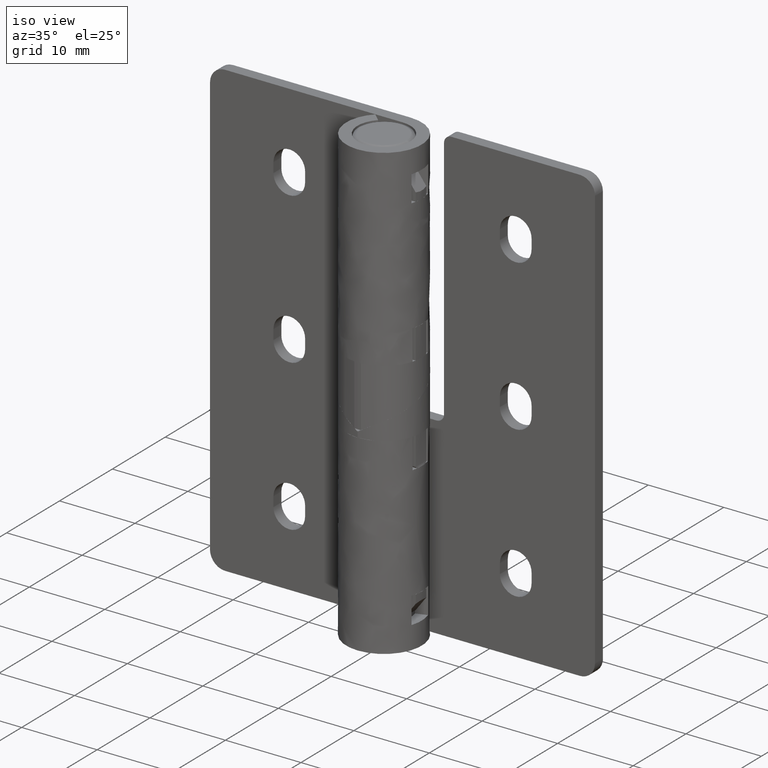
[diagram: clean part render]
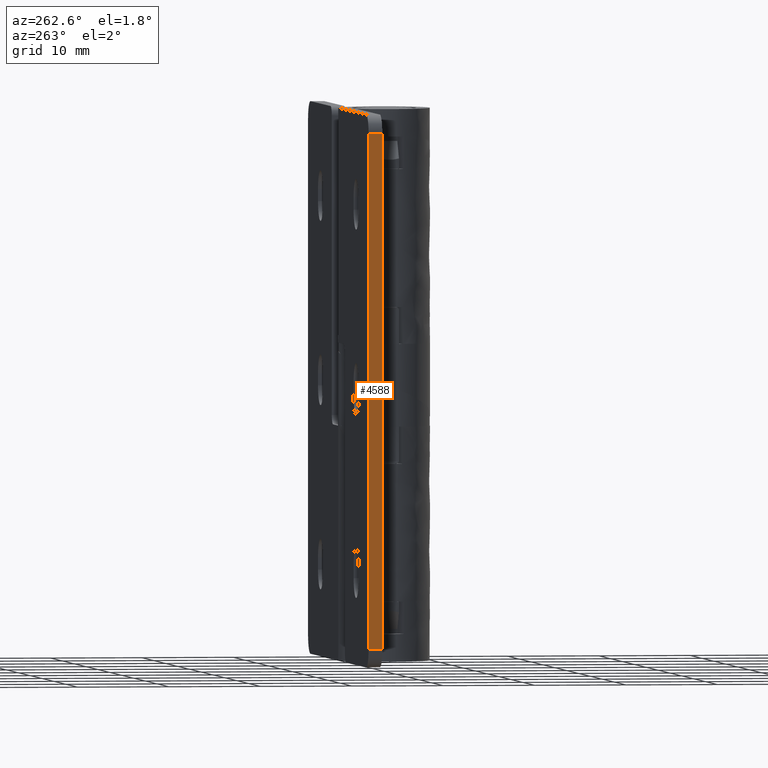
[diagram: tour spotlight — one face highlighted and labeled with its STEP entity id]
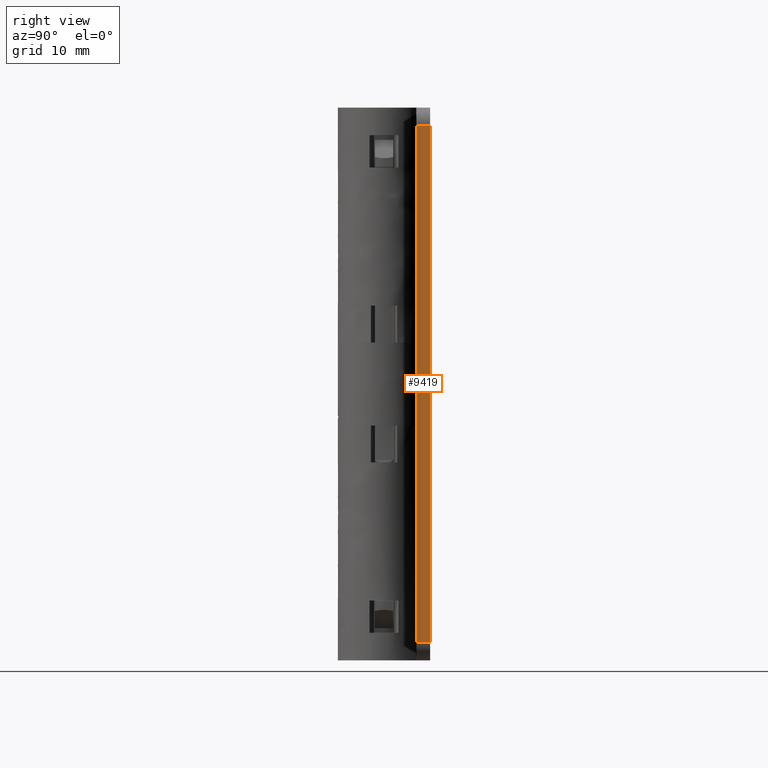
[diagram: tour spotlight — one face highlighted and labeled with its STEP entity id]
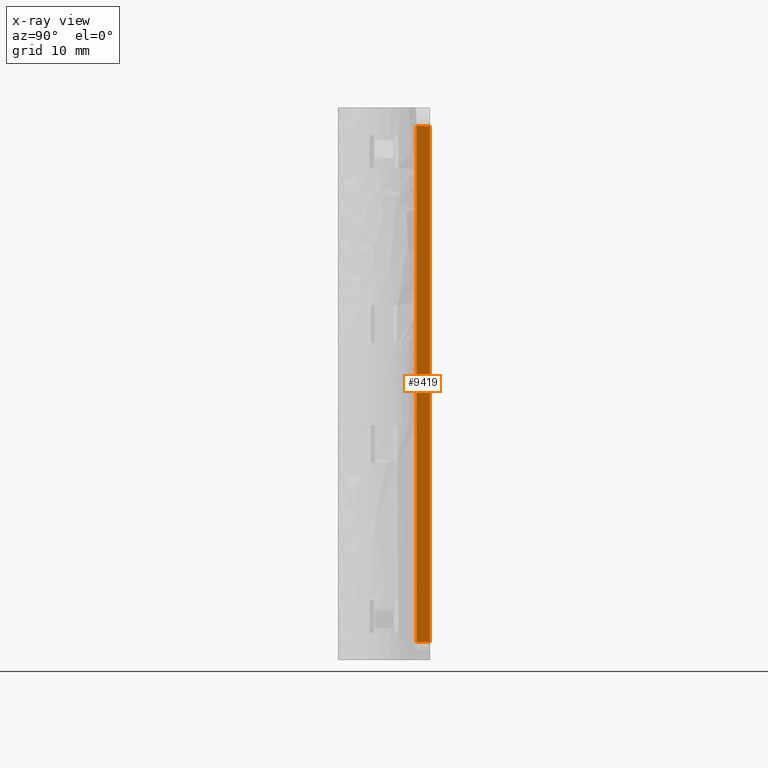
[diagram: x-ray of the same camera — body ghosted, this tour face saturated]
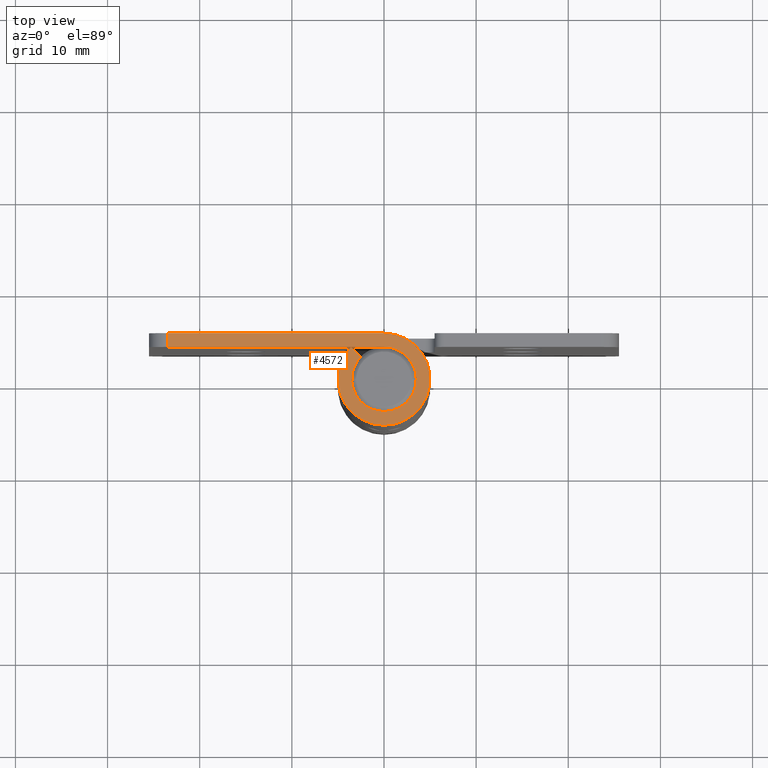
[diagram: tour spotlight — one face highlighted and labeled with its STEP entity id]
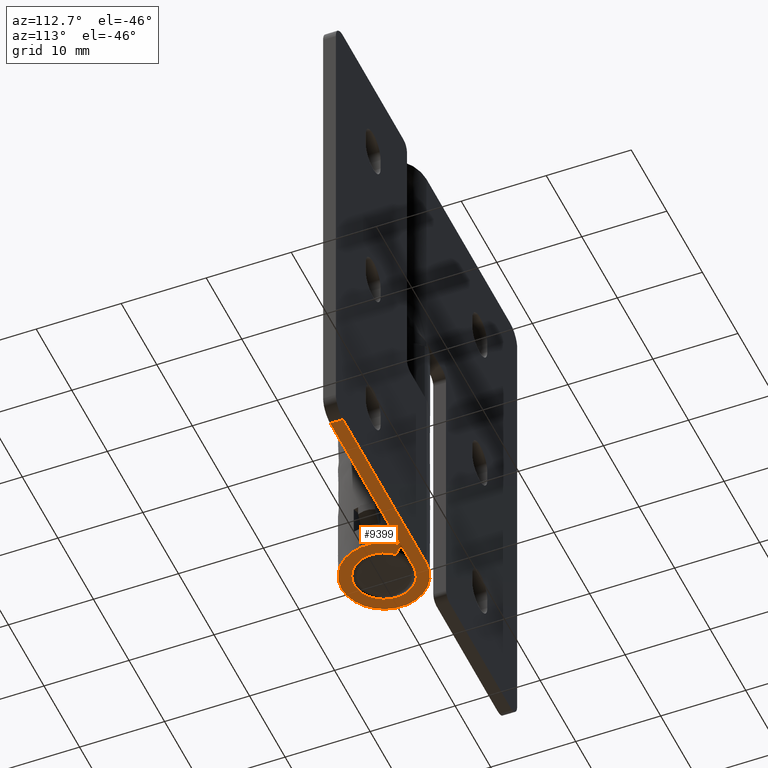
[diagram: tour spotlight — one face highlighted and labeled with its STEP entity id]
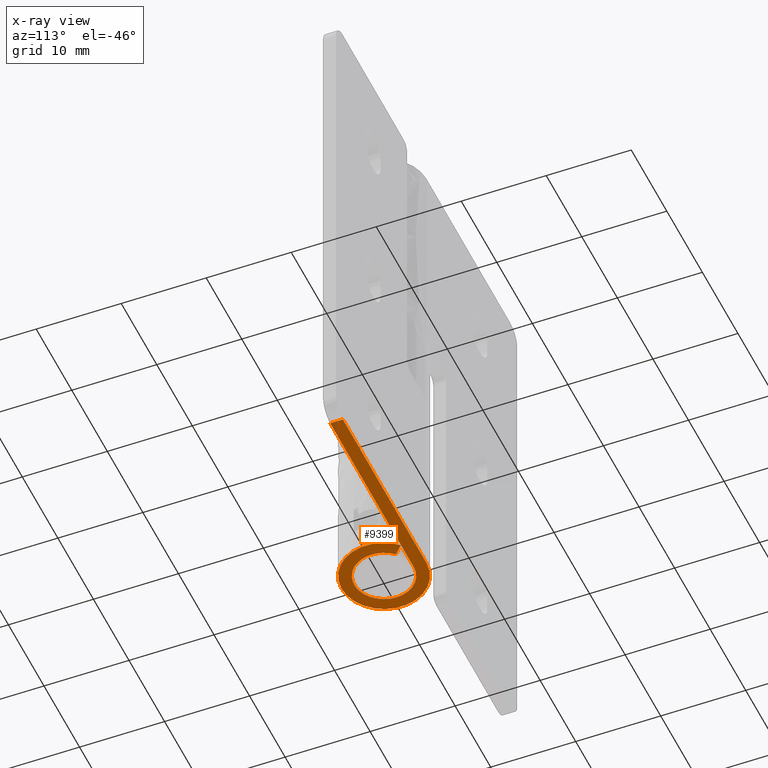
[diagram: x-ray of the same camera — body ghosted, this tour face saturated]
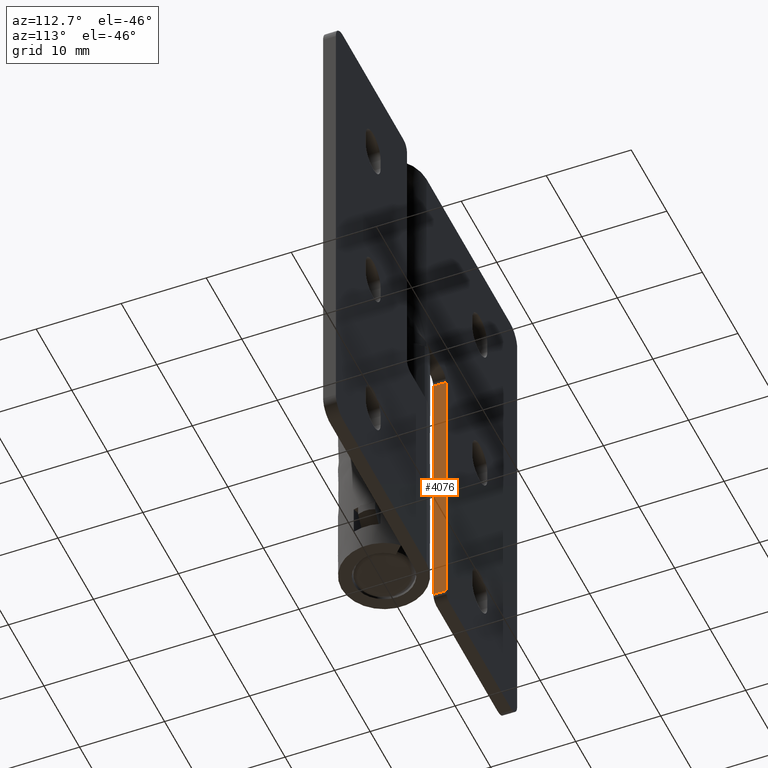
[diagram: tour spotlight — one face highlighted and labeled with its STEP entity id]
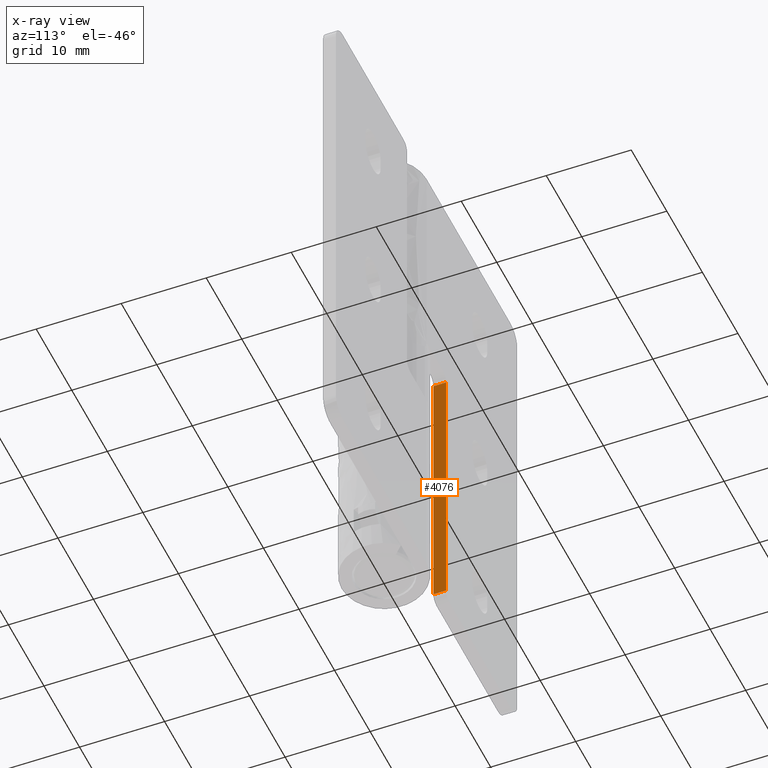
[diagram: x-ray of the same camera — body ghosted, this tour face saturated]
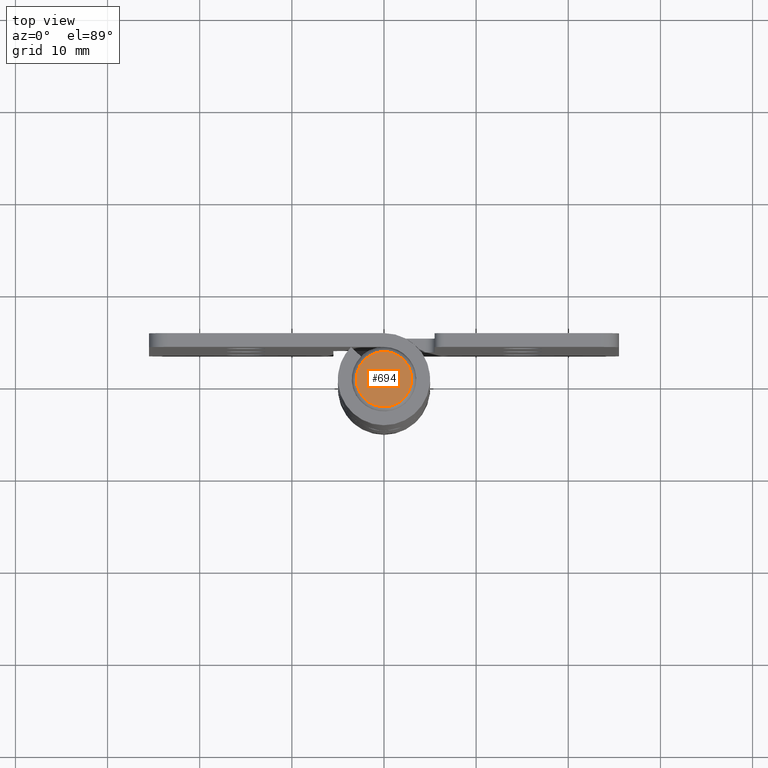
[diagram: tour spotlight — one face highlighted and labeled with its STEP entity id]
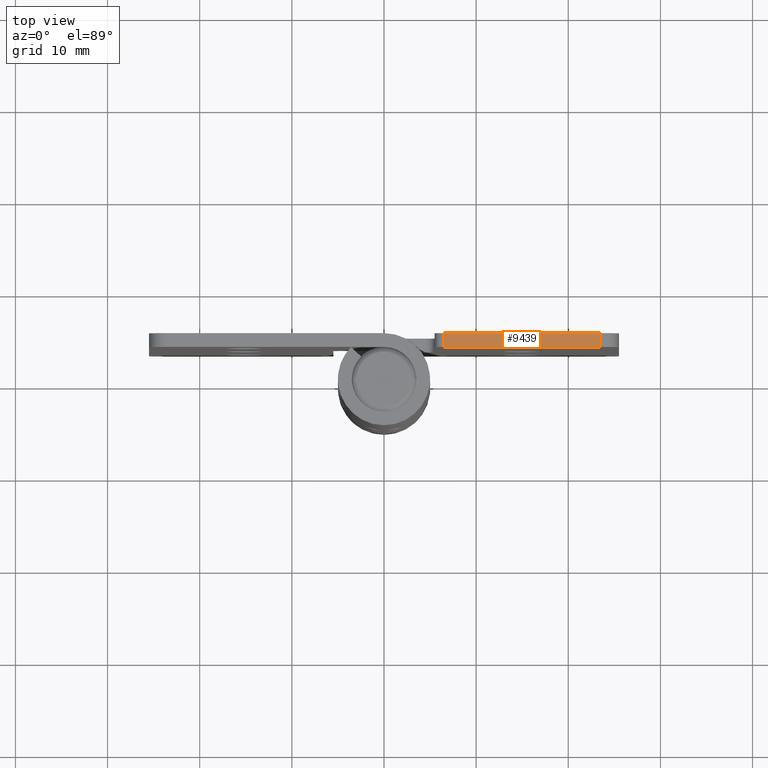
[diagram: tour spotlight — one face highlighted and labeled with its STEP entity id]
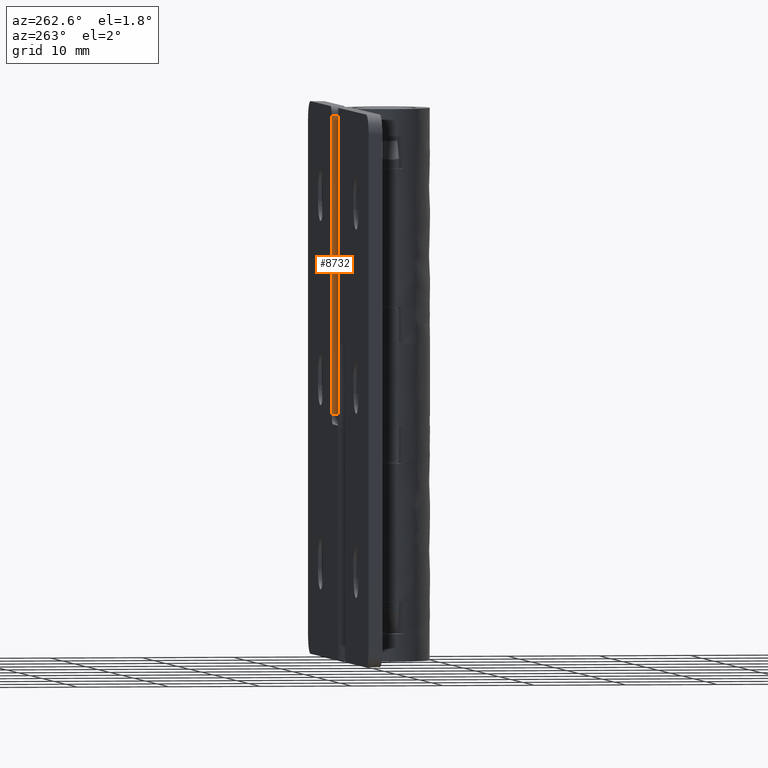
[diagram: tour spotlight — one face highlighted and labeled with its STEP entity id]
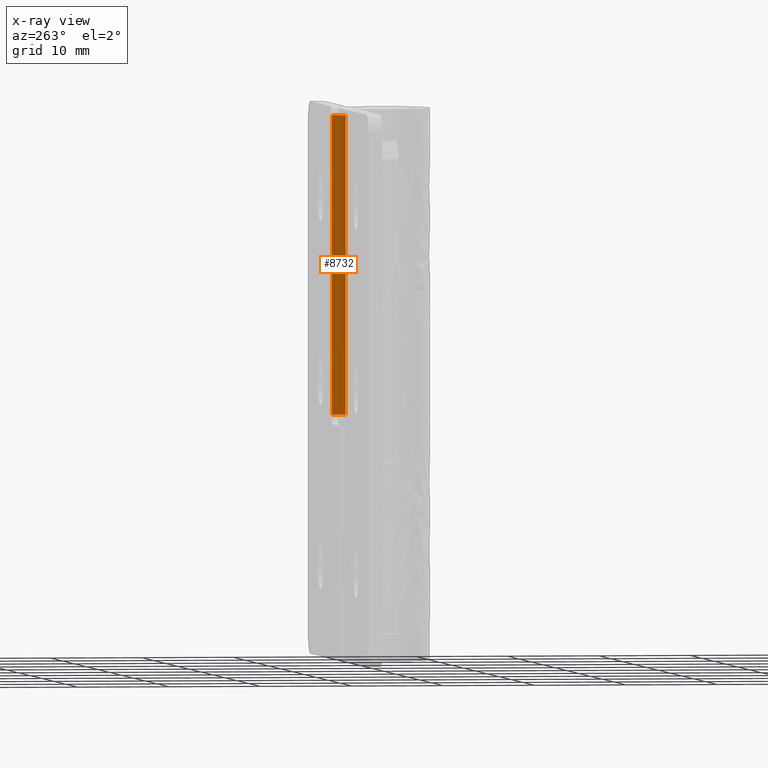
[diagram: x-ray of the same camera — body ghosted, this tour face saturated]
A machine part: a face-by-face anatomy tour. The part has 198 B-rep faces; the first image is the clean iso view, then the 8 largest visible faces are spotlighted one at a time (largest first), each with its STEP entity span.

Face 1 — auxiliary view, entity #4588. In plain terms, the highlighted face is a freeform B-spline surface patch.
Definition (entity closure, byte-faithful):
#1303=CARTESIAN_POINT('',(-25.500001251324601,3.500001000000000,58.000003882757902));
#1304=VERTEX_POINT('',#1303);
#1305=CARTESIAN_POINT('',(-25.500000993851600,3.500001000000000,2.000000882757790));
#1306=VERTEX_POINT('',#1305);
#1307=CARTESIAN_POINT('',(-25.500001251324601,3.500001000000000,58.000003882757902));
#1308=CARTESIAN_POINT('',(-25.500000993851600,3.500001000000000,2.000000882757790));
#1309=QUASI_UNIFORM_CURVE('',1,(#1307,#1308),.UNSPECIFIED.,.F.,.U.);
#1310=EDGE_CURVE('',#1304,#1306,#1309,.T.);
#3942=CARTESIAN_POINT('',(-25.500000993851600,5.000000999999999,2.000000882757790));
#3943=VERTEX_POINT('',#3942);
#3965=CARTESIAN_POINT('',(-25.500000993851600,3.500001000000000,2.000000882757790));
#3966=CARTESIAN_POINT('',(-25.500000993851600,5.000000999999999,2.000000882757790));
#3967=QUASI_UNIFORM_CURVE('',1,(#3965,#3966),.UNSPECIFIED.,.F.,.U.);
#3968=EDGE_CURVE('',#1306,#3943,#3967,.T.);
#3989=CARTESIAN_POINT('',(-25.500001251324601,5.000000999999999,58.000003882757902));
#3990=VERTEX_POINT('',#3989);
#4004=CARTESIAN_POINT('',(-25.500001251324601,5.000000999999999,58.000003882757902));
#4005=CARTESIAN_POINT('',(-25.500001251324601,3.500001000000000,58.000003882757902));
#4006=QUASI_UNIFORM_CURVE('',1,(#4004,#4005),.UNSPECIFIED.,.F.,.U.);
#4007=EDGE_CURVE('',#3990,#1304,#4006,.T.);
#4573=CARTESIAN_POINT('',(-25.500001264185411,5.074925997092708,60.797203924069038));
#4574=CARTESIAN_POINT('',(-25.500000980990809,5.074925997092708,-0.797200660590478));
#4575=CARTESIAN_POINT('',(-25.500001264185411,3.425075962674156,60.797203924069038));
#4576=CARTESIAN_POINT('',(-25.500000980990809,3.425075962674156,-0.797200660590478));
#4577=B_SPLINE_SURFACE_WITH_KNOTS('',1,1,((#4573,#4575),(#4574,#4576)),.UNSPECIFIED.,.F.,.F.,.U.,(2,2),(2,2),(0.0,61.594404584659522),(0.041708334948495,0.958291687403247),.UNSPECIFIED.);
#4578=CARTESIAN_POINT('',(-25.500001251324601,5.000000999999999,58.000003882757902));
#4579=CARTESIAN_POINT('',(-25.500000993851600,5.000000999999999,2.000000882757790));
#4580=QUASI_UNIFORM_CURVE('',1,(#4578,#4579),.UNSPECIFIED.,.F.,.U.);
#4581=EDGE_CURVE('',#3990,#3943,#4580,.T.);
#4582=ORIENTED_EDGE('',*,*,#4581,.T.);
#4583=ORIENTED_EDGE('',*,*,#3968,.F.);
#4584=ORIENTED_EDGE('',*,*,#1310,.F.);
#4585=ORIENTED_EDGE('',*,*,#4007,.F.);
#4586=EDGE_LOOP('',(#4582,#4583,#4584,#4585));
#4587=FACE_OUTER_BOUND('',#4586,.T.);
#4588=ADVANCED_FACE('',(#4587),#4577,.T.);

Face 2 — right view, entity #9419. An x-ray twin of the same camera follows (body ghosted, this face saturated) — the face is partly hidden behind the body. In plain terms, the highlighted face is a freeform B-spline surface patch.
Definition (entity closure, byte-faithful):
#8605=CARTESIAN_POINT('',(25.500000748675351,5.0,58.000003117242301));
#8606=VERTEX_POINT('',#8605);
#8629=CARTESIAN_POINT('',(25.500000748675351,3.500000000000000,58.000003117242301));
#8630=VERTEX_POINT('',#8629);
#8644=CARTESIAN_POINT('',(25.500000748675351,3.500000000000000,58.000003117242301));
#8645=CARTESIAN_POINT('',(25.500000748675351,5.0,58.000003117242301));
#8646=QUASI_UNIFORM_CURVE('',1,(#8644,#8645),.UNSPECIFIED.,.F.,.U.);
#8647=EDGE_CURVE('',#8630,#8606,#8646,.T.);
#8668=CARTESIAN_POINT('',(25.500001006148398,5.0,2.000000117242185));
#8669=VERTEX_POINT('',#8668);
#8683=CARTESIAN_POINT('',(25.500001006148398,3.500000000000000,2.000000117242185));
#8684=VERTEX_POINT('',#8683);
#8685=CARTESIAN_POINT('',(25.500001006148398,5.0,2.000000117242185));
#8686=CARTESIAN_POINT('',(25.500001006148398,3.500000000000000,2.000000117242185));
#8687=QUASI_UNIFORM_CURVE('',1,(#8685,#8686),.UNSPECIFIED.,.F.,.U.);
#8688=EDGE_CURVE('',#8669,#8684,#8687,.T.);
#9400=CARTESIAN_POINT('',(25.500000735814591,5.074924997092710,60.797203158553437));
#9401=CARTESIAN_POINT('',(25.500001019009190,5.074924997092710,-0.797201426106075));
#9402=CARTESIAN_POINT('',(25.500000735814591,3.425074962674156,60.797203158553437));
#9403=CARTESIAN_POINT('',(25.500001019009190,3.425074962674156,-0.797201426106075));
#9404=B_SPLINE_SURFACE_WITH_KNOTS('',1,1,((#9400,#9402),(#9401,#9403)),.UNSPECIFIED.,.F.,.F.,.U.,(2,2),(2,2),(0.0,61.594404584659522),(0.041708334948495,0.958291687403247),.UNSPECIFIED.);
#9405=CARTESIAN_POINT('',(25.500000748675351,5.0,58.000003117242301));
#9406=CARTESIAN_POINT('',(25.500001006148398,5.0,2.000000117242185));
#9407=QUASI_UNIFORM_CURVE('',1,(#9405,#9406),.UNSPECIFIED.,.F.,.U.);
#9408=EDGE_CURVE('',#8606,#8669,#9407,.T.);
#9409=ORIENTED_EDGE('',*,*,#9408,.F.);
#9410=ORIENTED_EDGE('',*,*,#8647,.F.);
#9411=CARTESIAN_POINT('',(25.500000748675351,3.500000000000000,58.000003117242301));
#9412=CARTESIAN_POINT('',(25.500001006148398,3.500000000000000,2.000000117242185));
#9413=QUASI_UNIFORM_CURVE('',1,(#9411,#9412),.UNSPECIFIED.,.F.,.U.);
#9414=EDGE_CURVE('',#8630,#8684,#9413,.T.);
#9415=ORIENTED_EDGE('',*,*,#9414,.T.);
#9416=ORIENTED_EDGE('',*,*,#8688,.F.);
#9417=EDGE_LOOP('',(#9409,#9410,#9415,#9416));
#9418=FACE_OUTER_BOUND('',#9417,.T.);
#9419=ADVANCED_FACE('',(#9418),#9404,.F.);

Face 3 — top view, entity #4572. In plain terms, the highlighted face is a freeform B-spline surface patch.
Definition (entity closure, byte-faithful):
#1389=CARTESIAN_POINT('',(-0.000000260520087,3.500001000000000,60.000004000000096));
#1390=VERTEX_POINT('',#1389);
#1396=CARTESIAN_POINT('',(-23.500001260520101,3.500001000000000,60.000003891953298));
#1397=VERTEX_POINT('',#1396);
#1398=CARTESIAN_POINT('',(-23.500001260520101,3.500001000000000,60.000003891953298));
#1399=CARTESIAN_POINT('',(-0.000000260520087,3.500001000000000,60.000004000000096));
#1400=QUASI_UNIFORM_CURVE('',1,(#1398,#1399),.UNSPECIFIED.,.F.,.U.);
#1401=EDGE_CURVE('',#1397,#1390,#1400,.T.);
#1627=CARTESIAN_POINT('',(-2.499500958105065,2.450000665872005,60.000003988507999));
#1628=VERTEX_POINT('',#1627);
#1634=CARTESIAN_POINT('',(-0.000000260520087,3.500001000000000,60.000004000000096));
#1635=CARTESIAN_POINT('',(0.262603403531770,3.500056024050533,60.000004001207522));
#1636=CARTESIAN_POINT('',(0.687736451178236,3.451911994518464,60.000004003162140));
#1637=CARTESIAN_POINT('',(1.323454370324029,3.258925026738228,60.000004006085042));
#1638=CARTESIAN_POINT('',(1.839939676912816,2.999006588386965,60.000004008459577));
#1639=CARTESIAN_POINT('',(2.311578031015808,2.645542218672373,60.000004010627947));
#1640=CARTESIAN_POINT('',(2.716306950623997,2.234510069856548,60.000004012489320));
#1641=CARTESIAN_POINT('',(3.031219739989302,1.780207079639389,60.000004013936547));
#1642=CARTESIAN_POINT('',(3.290309713532388,1.237415465635423,60.000004015128347));
#1643=CARTESIAN_POINT('',(3.480869330837676,0.586323530553894,60.000004016003317));
#1644=CARTESIAN_POINT('',(3.520615139509439,-0.080716446145826,60.000004016187312));
#1645=CARTESIAN_POINT('',(3.437351295175455,-0.726769309129725,60.000004015804187));
#1646=CARTESIAN_POINT('',(3.254732296719709,-1.366753385458846,60.000004014964652));
#1647=CARTESIAN_POINT('',(2.901845525933892,-2.007837107676079,60.000004013340693));
#1648=CARTESIAN_POINT('',(2.403557601630291,-2.572494563292307,60.000004011055047));
#1649=CARTESIAN_POINT('',(1.956818675253504,-2.919432753271955,60.000004008985172));
#1650=CARTESIAN_POINT('',(1.452639801791119,-3.198045389135360,60.000004006702063));
#1651=CARTESIAN_POINT('',(0.888619459119563,-3.410520040654796,60.000004004067897));
#1652=CARTESIAN_POINT('',(0.242261850084998,-3.512520944957580,60.000004001120992));
#1653=CARTESIAN_POINT('',(-0.359372900334955,-3.493804298561488,60.000003998346578));
#1654=CARTESIAN_POINT('',(-0.865406493476308,-3.403955640319464,60.000003996021341));
#1655=CARTESIAN_POINT('',(-1.389081110978069,-3.230166441957564,60.000003993613433));
#1656=CARTESIAN_POINT('',(-2.021821335211825,-2.895575623749311,60.000003990703703));
#1657=CARTESIAN_POINT('',(-2.640471421154628,-2.356286390223928,60.000003987861213));
#1658=CARTESIAN_POINT('',(-3.086039138691199,-1.699942392606459,60.000003985811041));
#1659=CARTESIAN_POINT('',(-3.382844634205087,-0.994591224231533,60.000003984446948));
#1660=CARTESIAN_POINT('',(-3.529973542610455,-0.226820174559734,60.000003983769517));
#1661=CARTESIAN_POINT('',(-3.484960043774403,0.489969303166502,60.000003983978367));
#1662=CARTESIAN_POINT('',(-3.339353118417448,1.086061007901758,60.000003984647023));
#1663=CARTESIAN_POINT('',(-3.084159247829351,1.727464495421988,60.000003985816157));
#1664=CARTESIAN_POINT('',(-2.753487582746710,2.191132568046640,60.000003987344762));
#1665=CARTESIAN_POINT('',(-2.499500958105065,2.450000665872005,60.000003988507999));
#1666=B_SPLINE_CURVE_WITH_KNOTS('',3,(#1634,#1635,#1636,#1637,#1638,#1639,#1640,#1641,#1642,#1643,#1644,#1645,#1646,#1647,#1648,#1649,#1650,#1651,#1652,#1653,#1654,#1655,#1656,#1657,#1658,#1659,#1660,#1661,#1662,#1663,#1664,#1665),.UNSPECIFIED.,.F.,.U.,(4,1,1,1,1,1,1,1,1,1,1,1,1,1,1,1,1,1,1,1,1,1,1,1,1,1,1,1,1,4),(0.000000327577325,0.787800066866780,1.275484508409573,1.988254620298434,2.513464387966060,3.038675853268526,3.713932226381193,4.164124515391452,4.839318995090645,5.739677307539457,6.152350298233017,6.790091999135930,7.727967073818595,8.328206780892531,9.040973538880291,9.416139310987440,10.053841249027229,10.841627127496650,11.366844170701620,11.854536222928610,12.379745289622599,13.017484700705911,13.992887735971630,14.818138201435680,15.380877834739870,16.281229068174010,17.144061607274161,17.519209306170840,18.119437180521441,19.207350046540320),.UNSPECIFIED.);
#1667=EDGE_CURVE('',#1390,#1628,#1666,.T.);
#3987=CARTESIAN_POINT('',(-23.500001260520101,5.000000999999999,60.000003891953298));
#3988=VERTEX_POINT('',#3987);
#4010=CARTESIAN_POINT('',(-23.500001260520101,3.500001000000000,60.000003891953298));
#4011=CARTESIAN_POINT('',(-23.500001260520101,5.000000999999999,60.000003891953298));
#4012=QUASI_UNIFORM_CURVE('',1,(#4010,#4011),.UNSPECIFIED.,.F.,.U.);
#4013=EDGE_CURVE('',#1397,#3988,#4012,.T.);
#4512=CARTESIAN_POINT('',(6.423491460664998,-5.499499955132420,60.000004029533521));
#4513=CARTESIAN_POINT('',(-24.923573057686969,-5.499499955132420,60.000003885408077));
#4514=CARTESIAN_POINT('',(6.423491460664998,5.499501294218037,60.000004029533521));
#4515=CARTESIAN_POINT('',(-24.923573057686969,5.499501294218037,60.000003885408077));
#4516=B_SPLINE_SURFACE_WITH_KNOTS('',1,1,((#4512,#4514),(#4513,#4515)),.UNSPECIFIED.,.F.,.F.,.U.,(2,2),(2,2),(0.0,31.347064518351971),(0.0,10.999001249350460),.UNSPECIFIED.);
#4517=ORIENTED_EDGE('',*,*,#1401,.T.);
#4518=ORIENTED_EDGE('',*,*,#1667,.T.);
#4519=CARTESIAN_POINT('',(-3.584604260520100,3.485774000000000,60.000003983519001));
#4520=VERTEX_POINT('',#4519);
#4521=CARTESIAN_POINT('',(-2.499500958105065,2.450000665872005,60.000003988507999));
#4522=CARTESIAN_POINT('',(-3.584604260520100,3.485774000000000,60.000003983519001));
#4523=QUASI_UNIFORM_CURVE('',1,(#4521,#4522),.UNSPECIFIED.,.F.,.U.);
#4524=EDGE_CURVE('',#1628,#4520,#4523,.T.);
#4525=ORIENTED_EDGE('',*,*,#4524,.T.);
#4526=CARTESIAN_POINT('',(-0.000000260520086,5.0,60.000004000000096));
#4527=VERTEX_POINT('',#4526);
#4528=CARTESIAN_POINT('',(-0.000000260520086,5.0,60.000004000000096));
#4529=CARTESIAN_POINT('',(0.339168441609722,5.000037761302760,60.000004001559567));
#4530=CARTESIAN_POINT('',(1.017492387198805,4.930737607081747,60.000004004678203));
#4531=CARTESIAN_POINT('',(1.907413976512160,4.650313964338536,60.000004008769942));
#4532=CARTESIAN_POINT('',(2.716376997519657,4.227119634181282,60.000004012489271));
#4533=CARTESIAN_POINT('',(3.385690773434950,3.714772841895097,60.000004015566446));
#4534=CARTESIAN_POINT('',(4.002040958868134,3.040728985050709,60.000004018400823));
#4535=CARTESIAN_POINT('',(4.443037078345874,2.343526992510551,60.000004020427284));
#4536=CARTESIAN_POINT('',(4.810644640858055,1.469262720507996,60.000004022118482));
#4537=CARTESIAN_POINT('',(5.017297474343224,0.502484676933279,60.000004023068861));
#4538=CARTESIAN_POINT('',(5.002017048542065,-0.556658392659577,60.000004022997942));
#4539=CARTESIAN_POINT('',(4.794074635849126,-1.520367672927630,60.000004022043122));
#4540=CARTESIAN_POINT('',(4.437929770182652,-2.362817004477889,60.000004020402777));
#4541=CARTESIAN_POINT('',(3.925779103632349,-3.141103947190555,60.000004018052692));
#4542=CARTESIAN_POINT('',(3.354967936428937,-3.736712306150280,60.000004015423968));
#4543=CARTESIAN_POINT('',(2.669388530807791,-4.253629755018669,60.000004012273472));
#4544=CARTESIAN_POINT('',(1.955585245623873,-4.630121480786790,60.000004008991290));
#4545=CARTESIAN_POINT('',(1.136598042944897,-4.891241049354735,60.000004005225939));
#4546=CARTESIAN_POINT('',(0.410363552102831,-4.999493930274016,60.000004001886857));
#4547=CARTESIAN_POINT('',(-0.322777565479001,-5.005906077639171,60.000003998516050));
#4548=CARTESIAN_POINT('',(-1.157345977826975,-4.896458462600877,60.000003994678963));
#4549=CARTESIAN_POINT('',(-2.094197290269679,-4.582595400829328,60.000003990371553));
#4550=CARTESIAN_POINT('',(-2.941926894346900,-4.077279421996061,60.000003986473878));
#4551=CARTESIAN_POINT('',(-3.655765525215737,-3.451723998052960,60.000003983191903));
#4552=CARTESIAN_POINT('',(-4.234586174163993,-2.719910370714390,60.000003980530643));
#4553=CARTESIAN_POINT('',(-4.649592047997546,-1.904858799750590,60.000003978622473));
#4554=CARTESIAN_POINT('',(-4.924377026919876,-1.015460965718463,60.000003977359157));
#4555=CARTESIAN_POINT('',(-5.044490098938108,0.000836110417829,60.000003976807093));
#4556=CARTESIAN_POINT('',(-4.927116178570706,1.037439030363907,60.000003977345663));
#4557=CARTESIAN_POINT('',(-4.609614025868849,2.007633084844685,60.000003978808699));
#4558=CARTESIAN_POINT('',(-4.180820225392517,2.795695166798939,60.000003980770217));
#4559=CARTESIAN_POINT('',(-3.783727789819785,3.281030369865072,60.000003982615631));
#4560=CARTESIAN_POINT('',(-3.584604260520100,3.485774000000000,60.000003983519001));
#4561=B_SPLINE_CURVE_WITH_KNOTS('',3,(#4528,#4529,#4530,#4531,#4532,#4533,#4534,#4535,#4536,#4537,#4538,#4539,#4540,#4541,#4542,#4543,#4544,#4545,#4546,#4547,#4548,#4549,#4550,#4551,#4552,#4553,#4554,#4555,#4556,#4557,#4558,#4559,#4560),.UNSPECIFIED.,.F.,.U.,(4,1,1,1,1,1,1,1,1,1,1,1,1,1,1,1,1,1,1,1,1,1,1,1,1,1,1,1,1,1,4),(0.000000806108631,1.017507007301418,2.035011776978312,2.784760293527519,3.748720145811284,4.552016813116811,5.515996476287249,6.212192882253575,7.390313575551243,8.461387733536483,9.371780232920724,10.335748361155829,11.192600809698140,12.156576000113629,12.799220820241359,13.763120876526839,14.566410751779630,15.369734111032070,15.958815923022410,16.762116159817172,17.886736554130039,18.904243783511539,19.707567142131420,20.725008679735510,21.688971356311530,22.438738666576288,23.509799025498939,24.741531349901940,25.544828818991270,26.562361937887381,27.419181143920319),.UNSPECIFIED.);
#4562=EDGE_CURVE('',#4527,#4520,#4561,.T.);
#4563=ORIENTED_EDGE('',*,*,#4562,.F.);
#4564=CARTESIAN_POINT('',(-0.000000260520086,5.0,60.000004000000096));
#4565=CARTESIAN_POINT('',(-23.500001260520101,5.000000999999999,60.000003891953298));
#4566=QUASI_UNIFORM_CURVE('',1,(#4564,#4565),.UNSPECIFIED.,.F.,.U.);
#4567=EDGE_CURVE('',#4527,#3988,#4566,.T.);
#4568=ORIENTED_EDGE('',*,*,#4567,.T.);
#4569=ORIENTED_EDGE('',*,*,#4013,.F.);
#4570=EDGE_LOOP('',(#4517,#4518,#4525,#4563,#4568,#4569));
#4571=FACE_OUTER_BOUND('',#4570,.T.);
#4572=ADVANCED_FACE('',(#4571),#4516,.F.);

Face 4 — auxiliary view, entity #9399. An x-ray twin of the same camera follows (body ghosted, this face saturated) — the face is partly hidden behind the body. In plain terms, the highlighted face is a freeform B-spline surface patch.
Definition (entity closure, byte-faithful):
#6081=CARTESIAN_POINT('',(2.499499989507380,2.449999975338090,0.000000011492033));
#6082=VERTEX_POINT('',#6081);
#6088=CARTESIAN_POINT('',(0.000000015343861,3.500000000000000,7.054697E-017));
#6089=VERTEX_POINT('',#6088);
#6090=CARTESIAN_POINT('',(0.000000015343861,3.500000000000000,7.054697E-017));
#6091=CARTESIAN_POINT('',(-0.325136547505192,3.500122872184311,-1.494891E-009));
#6092=CARTESIAN_POINT('',(-0.837753370501138,3.428027287619650,-3.851766E-009));
#6093=CARTESIAN_POINT('',(-1.460235469821714,3.194343176130837,-6.713772E-009));
#6094=CARTESIAN_POINT('',(-1.943088969219250,2.928194625549117,-8.933803E-009));
#6095=CARTESIAN_POINT('',(-2.469244712111508,2.520653435178548,-0.000000011352927));
#6096=CARTESIAN_POINT('',(-2.887527336777902,2.015783212998218,-0.000000013276078));
#6097=CARTESIAN_POINT('',(-3.244637973285598,1.368708214578169,-0.000000014917978));
#6098=CARTESIAN_POINT('',(-3.444956356282666,0.757716298682903,-0.000000015838988));
#6099=CARTESIAN_POINT('',(-3.510274700269011,0.120958201801812,-0.000000016139304));
#6100=CARTESIAN_POINT('',(-3.487507596809586,-0.417205897040341,-0.000000016034627));
#6101=CARTESIAN_POINT('',(-3.382524452782218,-0.972153473816183,-0.000000015551943));
#6102=CARTESIAN_POINT('',(-3.164886101037122,-1.534541159649502,-0.000000014551300));
#6103=CARTESIAN_POINT('',(-2.829233522662338,-2.093610448984865,-0.000000013008059));
#6104=CARTESIAN_POINT('',(-2.421527632705837,-2.555724935724395,-0.000000011133536));
#6105=CARTESIAN_POINT('',(-1.896382116067354,-2.963528459862869,-8.719058E-009));
#6106=CARTESIAN_POINT('',(-1.418094879935662,-3.214619594366683,-6.520021E-009));
#6107=CARTESIAN_POINT('',(-0.885616271992517,-3.399030992795809,-4.071827E-009));
#6108=CARTESIAN_POINT('',(-0.355258107157534,-3.500320971625789,-1.633382E-009));
#6109=CARTESIAN_POINT('',(0.297350583284897,-3.508055983208390,1.367138E-009));
#6110=CARTESIAN_POINT('',(0.866655943674460,-3.406974309211410,3.984652E-009));
#6111=CARTESIAN_POINT('',(1.457868168619192,-3.200157516951024,6.702888E-009));
#6112=CARTESIAN_POINT('',(1.975858945962017,-2.915410639327261,9.084471E-009));
#6113=CARTESIAN_POINT('',(2.447960189395363,-2.521271915398955,0.000000011255066));
#6114=CARTESIAN_POINT('',(2.877724248626013,-2.031175809723151,0.000000013231007));
#6115=CARTESIAN_POINT('',(3.200808138279714,-1.475745440871973,0.000000014716460));
#6116=CARTESIAN_POINT('',(3.439903626682025,-0.762003079115319,0.000000015815757));
#6117=CARTESIAN_POINT('',(3.534095484983452,-0.012387970288814,0.000000016248826));
#6118=CARTESIAN_POINT('',(3.444950387541473,0.751039681301946,0.000000015838961));
#6119=CARTESIAN_POINT('',(3.232332298486901,1.381350341992872,0.000000014861399));
#6120=CARTESIAN_POINT('',(2.939473764219489,1.935751666389839,0.000000013514914));
#6121=CARTESIAN_POINT('',(2.674590280625177,2.271426584647654,0.000000012297051));
#6122=CARTESIAN_POINT('',(2.499499989507380,2.449999975338090,0.000000011492033));
#6123=B_SPLINE_CURVE_WITH_KNOTS('',3,(#6090,#6091,#6092,#6093,#6094,#6095,#6096,#6097,#6098,#6099,#6100,#6101,#6102,#6103,#6104,#6105,#6106,#6107,#6108,#6109,#6110,#6111,#6112,#6113,#6114,#6115,#6116,#6117,#6118,#6119,#6120,#6121,#6122),.UNSPECIFIED.,.F.,.U.,(4,1,1,1,1,1,1,1,1,1,1,1,1,1,1,1,1,1,1,1,1,1,1,1,1,1,1,1,1,1,4),(0.000000327577915,0.975368019859111,1.538077743842685,1.988254053598556,2.626007647686656,3.526366489244177,3.939030067092604,4.839317615768609,5.439562660698584,5.852228093203141,6.452465336446098,7.127726398441988,7.652936776374327,8.403220001874336,8.965959665401320,9.641154611021067,10.016298268711679,10.654051701360190,11.254291712616210,11.967076229897319,12.379741761096710,13.130029991466021,13.730256117954680,14.217972112480300,15.080761609344620,15.643459746403620,16.468796714012289,17.331629007546582,17.931865700862069,18.457080328030411,19.207344571982912),.UNSPECIFIED.);
#6124=EDGE_CURVE('',#6089,#6082,#6123,.T.);
#8666=CARTESIAN_POINT('',(23.500001015343852,5.0,0.000000108046720));
#8667=VERTEX_POINT('',#8666);
#8690=CARTESIAN_POINT('',(23.500001015343852,3.500000000000000,0.000000108046720));
#8691=VERTEX_POINT('',#8690);
#8705=CARTESIAN_POINT('',(23.500001015343852,3.500000000000000,0.000000108046720));
#8706=CARTESIAN_POINT('',(23.500001015343852,5.0,0.000000108046720));
#8707=QUASI_UNIFORM_CURVE('',1,(#8705,#8706),.UNSPECIFIED.,.F.,.U.);
#8708=EDGE_CURVE('',#8691,#8667,#8707,.T.);
#9334=CARTESIAN_POINT('',(24.923571972475941,5.499499971462583,0.000000114591919));
#9335=CARTESIAN_POINT('',(-6.423490872891398,5.499499971462583,-0.000000029533493));
#9336=CARTESIAN_POINT('',(24.923571972475941,-5.499500053810072,0.000000114591919));
#9337=CARTESIAN_POINT('',(-6.423490872891398,-5.499500053810072,-0.000000029533493));
#9338=B_SPLINE_SURFACE_WITH_KNOTS('',1,1,((#9334,#9336),(#9335,#9337)),.UNSPECIFIED.,.F.,.F.,.U.,(2,2),(2,2),(0.0,31.347062845367340),(0.0,10.999000025272650),.UNSPECIFIED.);
#9339=CARTESIAN_POINT('',(23.500001015343852,3.500000000000000,0.000000108046720));
#9340=CARTESIAN_POINT('',(0.000000015343861,3.500000000000000,7.054697E-017));
#9341=QUASI_UNIFORM_CURVE('',1,(#9339,#9340),.UNSPECIFIED.,.F.,.U.);
#9342=EDGE_CURVE('',#8691,#6089,#9341,.T.);
#9343=ORIENTED_EDGE('',*,*,#9342,.T.);
#9344=ORIENTED_EDGE('',*,*,#6124,.T.);
#9345=CARTESIAN_POINT('',(3.584604070007145,3.485773052178175,0.000000016481051));
#9346=VERTEX_POINT('',#9345);
#9347=CARTESIAN_POINT('',(2.499499989507380,2.449999975338090,0.000000011492033));
#9348=CARTESIAN_POINT('',(3.584604070007145,3.485773052178175,0.000000016481051));
#9349=QUASI_UNIFORM_CURVE('',1,(#9347,#9348),.UNSPECIFIED.,.F.,.U.);
#9350=EDGE_CURVE('',#6082,#9346,#9349,.T.);
#9351=ORIENTED_EDGE('',*,*,#9350,.T.);
#9352=CARTESIAN_POINT('',(0.000000015343861,5.0,7.054697E-017));
#9353=VERTEX_POINT('',#9352);
#9354=CARTESIAN_POINT('',(0.000000015343861,5.0,7.054697E-017));
#9355=CARTESIAN_POINT('',(-0.410583753694414,5.000105933052311,-1.887754E-009));
#9356=CARTESIAN_POINT('',(-1.017452182501639,4.924799702435983,-4.677973E-009));
#9357=CARTESIAN_POINT('',(-1.904339605098021,4.645339767958876,-8.755644E-009));
#9358=CARTESIAN_POINT('',(-2.659424871605727,4.270748787268917,-0.000000012227324));
#9359=CARTESIAN_POINT('',(-3.414179142263505,3.692964550625354,-0.000000015697483));
#9360=CARTESIAN_POINT('',(-4.071664932337088,2.958324294497658,-0.000000018720426));
#9361=CARTESIAN_POINT('',(-4.536023015904382,2.169173267175692,-0.000000020855421));
#9362=CARTESIAN_POINT('',(-4.848857651638423,1.311483954795915,-0.000000022293751));
#9363=CARTESIAN_POINT('',(-4.996263000852723,0.518465840636072,-0.000000022971481));
#9364=CARTESIAN_POINT('',(-5.012836612564175,-0.412247537249554,-0.000000023047682));
#9365=CARTESIAN_POINT('',(-4.858157638485203,-1.315258966112484,-0.000000022336510));
#9366=CARTESIAN_POINT('',(-4.561729325967713,-2.084287381403803,-0.000000020973612));
#9367=CARTESIAN_POINT('',(-4.217942964224637,-2.711066550267077,-0.000000019392974));
#9368=CARTESIAN_POINT('',(-3.859104279586532,-3.202990934535510,-0.000000017743129));
#9369=CARTESIAN_POINT('',(-3.351973015649526,-3.732173888008538,-0.000000015411476));
#9370=CARTESIAN_POINT('',(-2.676577107142067,-4.264571068402892,-0.000000012306186));
#9371=CARTESIAN_POINT('',(-1.808546765733190,-4.698909993207194,-8.315214E-009));
#9372=CARTESIAN_POINT('',(-0.908286222593279,-4.938751188382739,-4.176057E-009));
#9373=CARTESIAN_POINT('',(-0.053304953091141,-5.024379362312558,-2.450819E-010));
#9374=CARTESIAN_POINT('',(0.876893986504950,-4.957729774532038,4.031724E-009));
#9375=CARTESIAN_POINT('',(1.809932921620712,-4.694369348848073,8.321588E-009));
#9376=CARTESIAN_POINT('',(2.753452353330349,-4.217656694166101,0.000000012659638));
#9377=CARTESIAN_POINT('',(3.510692407607405,-3.609429815844299,0.000000016141225));
#9378=CARTESIAN_POINT('',(4.138033676856811,-2.850061178796594,0.000000019025572));
#9379=CARTESIAN_POINT('',(4.556063394281486,-2.118628777939663,0.000000020947561));
#9380=CARTESIAN_POINT('',(4.818531941466808,-1.394679428444468,0.000000022154321));
#9381=CARTESIAN_POINT('',(4.962935047989535,-0.712391769306562,0.000000022818248));
#9382=CARTESIAN_POINT('',(5.030310946707141,0.125956425751536,0.000000023128024));
#9383=CARTESIAN_POINT('',(4.927120007800214,1.037432433648587,0.000000022653580));
#9384=CARTESIAN_POINT('',(4.609612112756320,2.007632635724248,0.000000021193764));
#9385=CARTESIAN_POINT('',(4.180823294460361,2.795697102360539,0.000000019222307));
#9386=CARTESIAN_POINT('',(3.783725830885748,3.281027780292258,0.000000017396559));
#9387=CARTESIAN_POINT('',(3.584604070007145,3.485773052178175,0.000000016481051));
#9388=B_SPLINE_CURVE_WITH_KNOTS('',3,(#9354,#9355,#9356,#9357,#9358,#9359,#9360,#9361,#9362,#9363,#9364,#9365,#9366,#9367,#9368,#9369,#9370,#9371,#9372,#9373,#9374,#9375,#9376,#9377,#9378,#9379,#9380,#9381,#9382,#9383,#9384,#9385,#9386,#9387),.UNSPECIFIED.,.F.,.U.,(4,1,1,1,1,1,1,1,1,1,1,1,1,1,1,1,1,1,1,1,1,1,1,1,1,1,1,1,1,1,1,4),(0.000000240033714,1.231715224045143,1.820804483641183,2.784759712229537,3.748719559242833,4.659137052276442,5.730210935664225,6.479957949371279,7.390312969073001,8.140041706721259,9.264679939914750,10.121532316063170,10.603513772786940,11.406809315787310,11.942360853559910,12.799220184194390,13.977352710254859,14.834175913207190,15.583943219694090,16.547902040078629,17.618973001488790,18.475823751047940,19.707566468319310,20.510856339990070,21.421204864356010,22.224528219002401,22.813610028341561,23.509798330901639,24.741530648571000,25.544828113270761,26.562361226601531,27.419180424619839),.UNSPECIFIED.);
#9389=EDGE_CURVE('',#9353,#9346,#9388,.T.);
#9390=ORIENTED_EDGE('',*,*,#9389,.F.);
#9391=CARTESIAN_POINT('',(0.000000015343861,5.0,7.054697E-017));
#9392=CARTESIAN_POINT('',(23.500001015343852,5.0,0.000000108046720));
#9393=QUASI_UNIFORM_CURVE('',1,(#9391,#9392),.UNSPECIFIED.,.F.,.U.);
#9394=EDGE_CURVE('',#9353,#8667,#9393,.T.);
#9395=ORIENTED_EDGE('',*,*,#9394,.T.);
#9396=ORIENTED_EDGE('',*,*,#8708,.F.);
#9397=EDGE_LOOP('',(#9343,#9344,#9351,#9390,#9395,#9396));
#9398=FACE_OUTER_BOUND('',#9397,.T.);
#9399=ADVANCED_FACE('',(#9398),#9338,.F.);

Face 5 — auxiliary view, entity #4076. An x-ray twin of the same camera follows (body ghosted, this face saturated) — the face is partly hidden behind the body. In plain terms, the highlighted face is a freeform B-spline surface patch.
Definition (entity closure, byte-faithful):
#1334=CARTESIAN_POINT('',(-5.499999989253850,3.500001000000000,1.000000974712444));
#1335=VERTEX_POINT('',#1334);
#1349=CARTESIAN_POINT('',(-5.500000138680171,3.500001000000000,33.500002974712451));
#1350=VERTEX_POINT('',#1349);
#1351=CARTESIAN_POINT('',(-5.500000138680171,3.500001000000000,33.500002974712451));
#1352=CARTESIAN_POINT('',(-5.499999989253850,3.500001000000000,1.000000974712444));
#1353=QUASI_UNIFORM_CURVE('',1,(#1351,#1352),.UNSPECIFIED.,.F.,.U.);
#1354=EDGE_CURVE('',#1350,#1335,#1353,.T.);
#3906=CARTESIAN_POINT('',(-5.500000138680171,5.000000999999999,33.500002974712501));
#3907=VERTEX_POINT('',#3906);
#3908=CARTESIAN_POINT('',(-5.500000138680171,3.500001000000000,33.500002974712451));
#3909=CARTESIAN_POINT('',(-5.500000138680171,5.000000999999999,33.500002974712501));
#3910=QUASI_UNIFORM_CURVE('',1,(#3908,#3909),.UNSPECIFIED.,.F.,.U.);
#3911=EDGE_CURVE('',#1350,#3907,#3910,.T.);
#4040=CARTESIAN_POINT('',(-5.499999989253850,5.000000999999999,1.000000974712482));
#4041=VERTEX_POINT('',#4040);
#4053=CARTESIAN_POINT('',(-5.499999989253850,5.000000999999999,1.000000974712482));
#4054=CARTESIAN_POINT('',(-5.499999989253850,3.500001000000000,1.000000974712444));
#4055=QUASI_UNIFORM_CURVE('',1,(#4053,#4054),.UNSPECIFIED.,.F.,.U.);
#4056=EDGE_CURVE('',#4041,#1335,#4055,.T.);
#4061=CARTESIAN_POINT('',(-5.499999981790001,5.074925997092709,-0.623374062196248));
#4062=CARTESIAN_POINT('',(-5.500000146144012,5.074925997092709,35.123378883339171));
#4063=CARTESIAN_POINT('',(-5.499999981790001,3.425075962674156,-0.623374062196248));
#4064=CARTESIAN_POINT('',(-5.500000146144012,3.425075962674156,35.123378883339171));
#4065=B_SPLINE_SURFACE_WITH_KNOTS('',1,1,((#4061,#4063),(#4062,#4064)),.UNSPECIFIED.,.F.,.F.,.U.,(2,2),(2,2),(0.0,35.746752945535420),(0.041708334948495,0.958291687403247),.UNSPECIFIED.);
#4066=ORIENTED_EDGE('',*,*,#1354,.T.);
#4067=ORIENTED_EDGE('',*,*,#4056,.F.);
#4068=CARTESIAN_POINT('',(-5.499999989253850,5.000000999999999,1.000000974712482));
#4069=CARTESIAN_POINT('',(-5.500000138680171,5.000000999999999,33.500002974712501));
#4070=QUASI_UNIFORM_CURVE('',1,(#4068,#4069),.UNSPECIFIED.,.F.,.U.);
#4071=EDGE_CURVE('',#4041,#3907,#4070,.T.);
#4072=ORIENTED_EDGE('',*,*,#4071,.T.);
#4073=ORIENTED_EDGE('',*,*,#3911,.F.);
#4074=EDGE_LOOP('',(#4066,#4067,#4072,#4073));
#4075=FACE_OUTER_BOUND('',#4074,.T.);
#4076=ADVANCED_FACE('',(#4075),#4065,.T.);

Face 6 — top view, entity #694. In plain terms, the highlighted face is a freeform B-spline surface patch.
Definition (entity closure, byte-faithful):
#641=CARTESIAN_POINT('',(-3.299701345900298,3.299701079862226,60.000003984828872));
#642=CARTESIAN_POINT('',(3.299700978093620,3.299701079862226,60.000004015171143));
#643=CARTESIAN_POINT('',(-3.299701345900298,-3.299701240794822,60.000003984828872));
#644=CARTESIAN_POINT('',(3.299700978093620,-3.299701240794822,60.000004015171143));
#645=B_SPLINE_SURFACE_WITH_KNOTS('',1,1,((#641,#643),(#642,#644)),.UNSPECIFIED.,.F.,.F.,.U.,(2,2),(2,2),(0.0,6.599402323993918),(0.0,6.599402320657048),.UNSPECIFIED.);
#646=CARTESIAN_POINT('',(3.000000729502379,-3.387867E-016,60.000004013793202));
#647=VERTEX_POINT('',#646);
#648=CARTESIAN_POINT('',(-3.000001258241652,-2.499066E-016,60.000003986206792));
#649=VERTEX_POINT('',#648);
#650=CARTESIAN_POINT('',(3.000000729502379,-3.387867E-016,60.000004013793202));
#651=CARTESIAN_POINT('',(3.000071073077284,0.245438350401630,60.000004013793443));
#652=CARTESIAN_POINT('',(2.951519945559574,0.638099879818113,60.000004013570447));
#653=CARTESIAN_POINT('',(2.773950205460685,1.175560519316112,60.000004012753791));
#654=CARTESIAN_POINT('',(2.496089001488518,1.711376156814950,60.000004011476364));
#655=CARTESIAN_POINT('',(2.062023980017009,2.220807987612447,60.000004009480783));
#656=CARTESIAN_POINT('',(1.449286578146986,2.657961520182025,60.000004006663261));
#657=CARTESIAN_POINT('',(0.738736700425413,2.947269064349523,60.000004003396839));
#658=CARTESIAN_POINT('',(0.011291551775185,3.027962229066744,60.000004000051817));
#659=CARTESIAN_POINT('',(-0.587703093183879,2.953923184584364,60.000003997298258));
#660=CARTESIAN_POINT('',(-1.084741216463179,2.813131710199126,60.000003995012392));
#661=CARTESIAN_POINT('',(-1.529596359765607,2.599383205644012,60.000003992967443));
#662=CARTESIAN_POINT('',(-2.018300049544321,2.246179372234374,60.000003990720387));
#663=CARTESIAN_POINT('',(-2.422249731924299,1.811362059126641,60.000003988863149));
#664=CARTESIAN_POINT('',(-2.720244734695971,1.299932957214592,60.000003987492910));
#665=CARTESIAN_POINT('',(-2.938919150219931,0.711692157037410,60.000003986488622));
#666=CARTESIAN_POINT('',(-3.000110789475264,0.282257766004805,60.000003986204568));
#667=CARTESIAN_POINT('',(-3.000001258241652,-2.499066E-016,60.000003986206792));
#668=B_SPLINE_CURVE_WITH_KNOTS('',3,(#650,#651,#652,#653,#654,#655,#656,#657,#658,#659,#660,#661,#662,#663,#664,#665,#666,#667),.UNSPECIFIED.,.F.,.U.,(4,1,1,1,1,1,1,1,1,1,1,1,1,1,1,4),(0.000000204868266,0.736294402111298,1.178105374029000,1.693524608582026,2.540292751881872,3.166167967709602,3.939300134268551,4.822841629939006,5.338280002894216,5.743232903837111,6.369114731699892,6.810915911039402,7.547240274718889,8.136312629121417,8.578108950409110,9.424840217291012),.UNSPECIFIED.);
#669=EDGE_CURVE('',#647,#649,#668,.T.);
#670=ORIENTED_EDGE('',*,*,#669,.T.);
#671=CARTESIAN_POINT('',(-3.000001258241652,-2.499066E-016,60.000003986206792));
#672=CARTESIAN_POINT('',(-3.000154947643763,-0.306808565443544,60.000003986206004));
#673=CARTESIAN_POINT('',(-2.925913873530133,-0.785295720595943,60.000003986547512));
#674=CARTESIAN_POINT('',(-2.657217130832192,-1.433941557882074,60.000003987782790));
#675=CARTESIAN_POINT('',(-2.300558728296948,-1.967814371937048,60.000003989422602));
#676=CARTESIAN_POINT('',(-1.793243560830186,-2.439086375013662,60.000003991755243));
#677=CARTESIAN_POINT('',(-1.213094412210871,-2.767676108682839,60.000003994422400));
#678=CARTESIAN_POINT('',(-0.543051947968760,-2.980004487548197,60.000003997503377));
#679=CARTESIAN_POINT('',(0.112322892108903,-3.024351188738277,60.000004000516043));
#680=CARTESIAN_POINT('',(0.696026907380312,-2.930296649571662,60.000004003200161));
#681=CARTESIAN_POINT('',(1.152432664956749,-2.782645055522995,60.000004005298713));
#682=CARTESIAN_POINT('',(1.614532601841104,-2.550069061486732,60.000004007423108));
#683=CARTESIAN_POINT('',(2.093467129775597,-2.181048332845061,60.000004009625421));
#684=CARTESIAN_POINT('',(2.475024882941149,-1.727545811218755,60.000004011379637));
#685=CARTESIAN_POINT('',(2.775154627599379,-1.190097223602158,60.000004012756371));
#686=CARTESIAN_POINT('',(2.957714819868210,-0.625847747176710,60.000004013608951));
#687=CARTESIAN_POINT('',(3.000019945176846,-0.196337505577287,60.000004013781428));
#688=CARTESIAN_POINT('',(3.000000729502379,-3.387867E-016,60.000004013793202));
#689=B_SPLINE_CURVE_WITH_KNOTS('',3,(#671,#672,#673,#674,#675,#676,#677,#678,#679,#680,#681,#682,#683,#684,#685,#686,#687,#688),.UNSPECIFIED.,.F.,.U.,(4,1,1,1,1,1,1,1,1,1,1,1,1,1,1,4),(0.000000204868366,0.920362601574427,1.435795527597100,2.098498179789464,2.834818204941816,3.497517314038295,4.086582851914355,4.933277490362364,5.448722720386770,5.853682625207791,6.369114731699762,6.994997666419172,7.657685516887843,8.136312629121351,8.835823149637781,9.424840217291013),.UNSPECIFIED.);
#690=EDGE_CURVE('',#649,#647,#689,.T.);
#691=ORIENTED_EDGE('',*,*,#690,.T.);
#692=EDGE_LOOP('',(#670,#691));
#693=FACE_OUTER_BOUND('',#692,.T.);
#694=ADVANCED_FACE('',(#693),#645,.F.);

Face 7 — top view, entity #9439. In plain terms, the highlighted face is a freeform B-spline surface patch.
Definition (entity closure, byte-faithful):
#8490=CARTESIAN_POINT('',(6.499999739479920,3.500000000000000,60.000003029885313));
#8491=VERTEX_POINT('',#8490);
#8504=CARTESIAN_POINT('',(6.499999739479920,5.0,60.000003029885313));
#8505=VERTEX_POINT('',#8504);
#8506=CARTESIAN_POINT('',(6.499999739479920,3.500000000000000,60.000003029885313));
#8507=CARTESIAN_POINT('',(6.499999739479920,5.0,60.000003029885313));
#8508=QUASI_UNIFORM_CURVE('',1,(#8506,#8507),.UNSPECIFIED.,.F.,.U.);
#8509=EDGE_CURVE('',#8491,#8505,#8508,.T.);
#8607=CARTESIAN_POINT('',(23.500000739479901,5.0,60.000003108046698));
#8608=VERTEX_POINT('',#8607);
#8622=CARTESIAN_POINT('',(23.500000739479901,3.500000000000000,60.000003108046698));
#8623=VERTEX_POINT('',#8622);
#8624=CARTESIAN_POINT('',(23.500000739479901,5.0,60.000003108046698));
#8625=CARTESIAN_POINT('',(23.500000739479901,3.500000000000000,60.000003108046698));
#8626=QUASI_UNIFORM_CURVE('',1,(#8624,#8625),.UNSPECIFIED.,.F.,.U.);
#8627=EDGE_CURVE('',#8608,#8623,#8626,.T.);
#9420=CARTESIAN_POINT('',(24.349150756480601,5.074924997092710,60.000003111950889));
#9421=CARTESIAN_POINT('',(5.650849266503663,5.074924997092710,60.000003025981087));
#9422=CARTESIAN_POINT('',(24.349150756480601,3.425074962674156,60.000003111950889));
#9423=CARTESIAN_POINT('',(5.650849266503663,3.425074962674156,60.000003025981087));
#9424=B_SPLINE_SURFACE_WITH_KNOTS('',1,1,((#9420,#9422),(#9421,#9423)),.UNSPECIFIED.,.F.,.F.,.U.,(2,2),(2,2),(0.0,18.698301489976931),(0.041708334948495,0.958291687403247),.UNSPECIFIED.);
#9425=CARTESIAN_POINT('',(23.500000739479901,3.500000000000000,60.000003108046698));
#9426=CARTESIAN_POINT('',(6.499999739479920,3.500000000000000,60.000003029885313));
#9427=QUASI_UNIFORM_CURVE('',1,(#9425,#9426),.UNSPECIFIED.,.F.,.U.);
#9428=EDGE_CURVE('',#8623,#8491,#9427,.T.);
#9429=ORIENTED_EDGE('',*,*,#9428,.F.);
#9430=ORIENTED_EDGE('',*,*,#8627,.F.);
#9431=CARTESIAN_POINT('',(6.499999739479920,5.0,60.000003029885313));
#9432=CARTESIAN_POINT('',(23.500000739479901,5.0,60.000003108046698));
#9433=QUASI_UNIFORM_CURVE('',1,(#9431,#9432),.UNSPECIFIED.,.F.,.U.);
#9434=EDGE_CURVE('',#8505,#8608,#9433,.T.);
#9435=ORIENTED_EDGE('',*,*,#9434,.F.);
#9436=ORIENTED_EDGE('',*,*,#8509,.F.);
#9437=EDGE_LOOP('',(#9429,#9430,#9435,#9436));
#9438=FACE_OUTER_BOUND('',#9437,.T.);
#9439=ADVANCED_FACE('',(#9438),#9424,.T.);

Face 8 — auxiliary view, entity #8732. An x-ray twin of the same camera follows (body ghosted, this face saturated) — the face is partly hidden behind the body. In plain terms, the highlighted face is a freeform B-spline surface patch.
Definition (entity closure, byte-faithful):
#8488=CARTESIAN_POINT('',(5.499999744077649,3.500000000000000,59.000003025287512));
#8489=VERTEX_POINT('',#8488);
#8511=CARTESIAN_POINT('',(5.499999744077649,5.0,59.000003025287597));
#8512=VERTEX_POINT('',#8511);
#8526=CARTESIAN_POINT('',(5.499999744077649,5.0,59.000003025287597));
#8527=CARTESIAN_POINT('',(5.499999744077649,3.500000000000000,59.000003025287512));
#8528=QUASI_UNIFORM_CURVE('',1,(#8526,#8527),.UNSPECIFIED.,.F.,.U.);
#8529=EDGE_CURVE('',#8512,#8489,#8528,.T.);
#8550=CARTESIAN_POINT('',(5.499999893503961,3.500000000000000,26.500003025287551));
#8551=VERTEX_POINT('',#8550);
#8563=CARTESIAN_POINT('',(5.499999893503961,5.0,26.500003025287551));
#8564=VERTEX_POINT('',#8563);
#8565=CARTESIAN_POINT('',(5.499999893503961,3.500000000000000,26.500003025287551));
#8566=CARTESIAN_POINT('',(5.499999893503961,5.0,26.500003025287551));
#8567=QUASI_UNIFORM_CURVE('',1,(#8565,#8566),.UNSPECIFIED.,.F.,.U.);
#8568=EDGE_CURVE('',#8551,#8564,#8567,.T.);
#8713=CARTESIAN_POINT('',(5.499999736613805,5.074924997092708,60.623377962296289));
#8714=CARTESIAN_POINT('',(5.499999900967804,5.074924997092708,24.876627216560919));
#8715=CARTESIAN_POINT('',(5.499999736613805,3.425074962674156,60.623377962296289));
#8716=CARTESIAN_POINT('',(5.499999900967804,3.425074962674156,24.876627216560919));
#8717=B_SPLINE_SURFACE_WITH_KNOTS('',1,1,((#8713,#8715),(#8714,#8716)),.UNSPECIFIED.,.F.,.F.,.U.,(2,2),(2,2),(0.0,35.746750745735369),(0.041708334948495,0.958291687403247),.UNSPECIFIED.);
#8718=CARTESIAN_POINT('',(5.499999744077649,3.500000000000000,59.000003025287512));
#8719=CARTESIAN_POINT('',(5.499999893503961,3.500000000000000,26.500003025287551));
#8720=QUASI_UNIFORM_CURVE('',1,(#8718,#8719),.UNSPECIFIED.,.F.,.U.);
#8721=EDGE_CURVE('',#8489,#8551,#8720,.T.);
#8722=ORIENTED_EDGE('',*,*,#8721,.F.);
#8723=ORIENTED_EDGE('',*,*,#8529,.F.);
#8724=CARTESIAN_POINT('',(5.499999744077649,5.0,59.000003025287597));
#8725=CARTESIAN_POINT('',(5.499999893503961,5.0,26.500003025287551));
#8726=QUASI_UNIFORM_CURVE('',1,(#8724,#8725),.UNSPECIFIED.,.F.,.U.);
#8727=EDGE_CURVE('',#8512,#8564,#8726,.T.);
#8728=ORIENTED_EDGE('',*,*,#8727,.T.);
#8729=ORIENTED_EDGE('',*,*,#8568,.F.);
#8730=EDGE_LOOP('',(#8722,#8723,#8728,#8729));
#8731=FACE_OUTER_BOUND('',#8730,.T.);
#8732=ADVANCED_FACE('',(#8731),#8717,.T.);